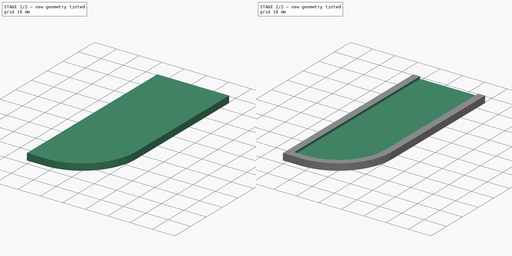
[diagram: build sequence overview — one tinted view per stage of 2, left to right]
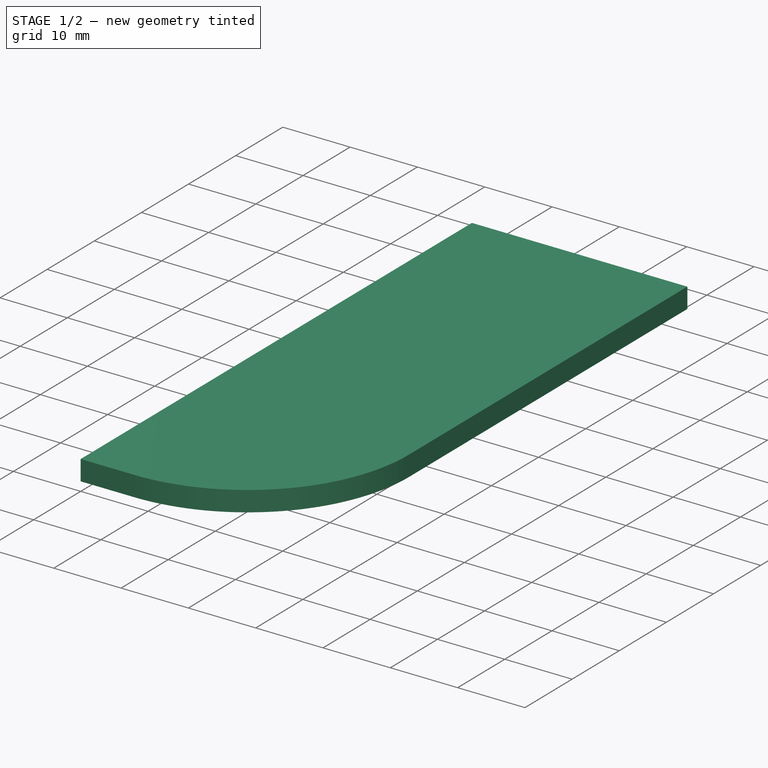
[diagram: stage 1 of 2 — iso view after this stage's code; geometry added in this stage tinted green]
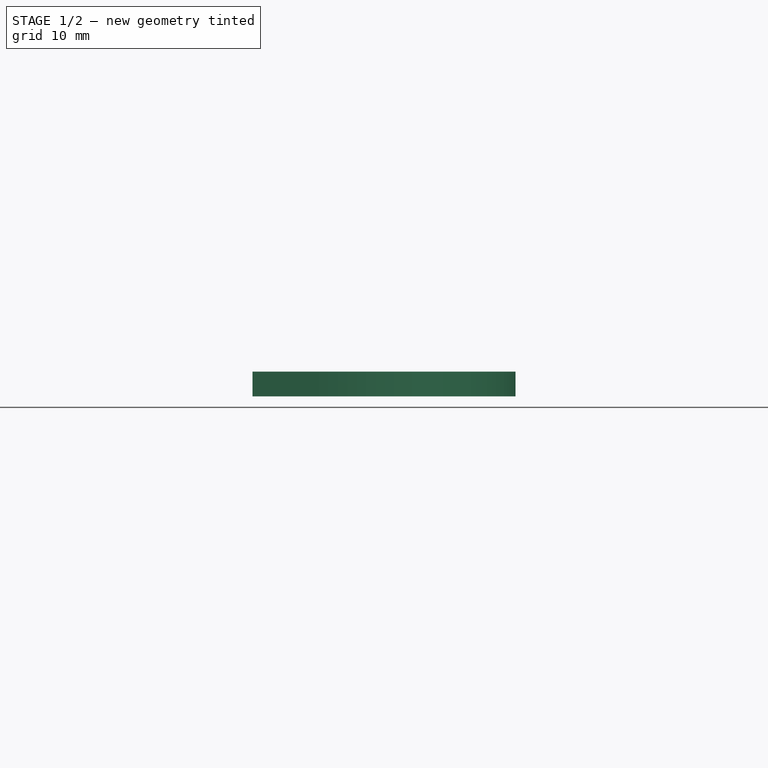
[diagram: stage 1 of 2 — front view after this stage's code; geometry added in this stage tinted green]
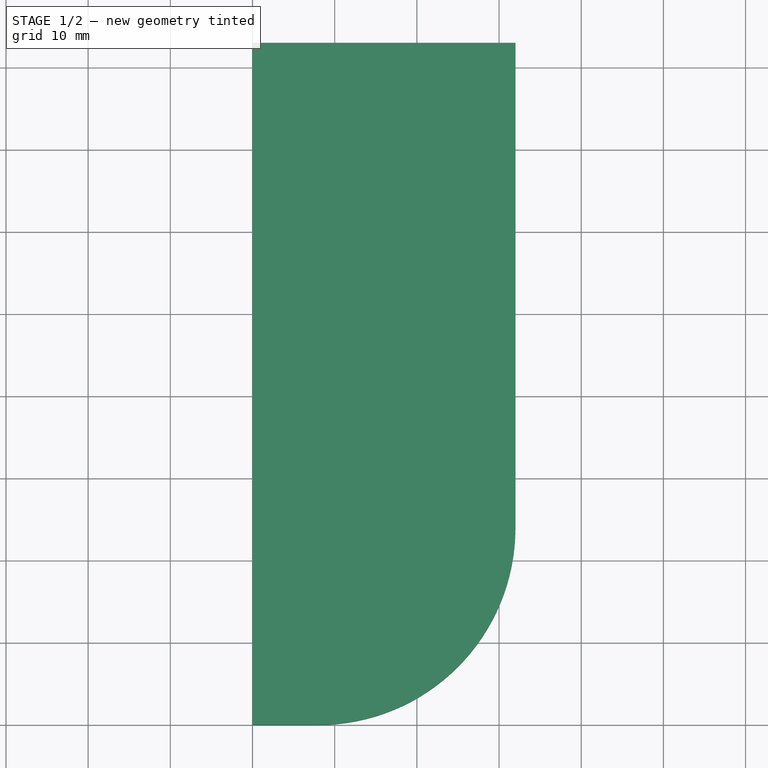
[diagram: stage 1 of 2 — top view after this stage's code; geometry added in this stage tinted green]
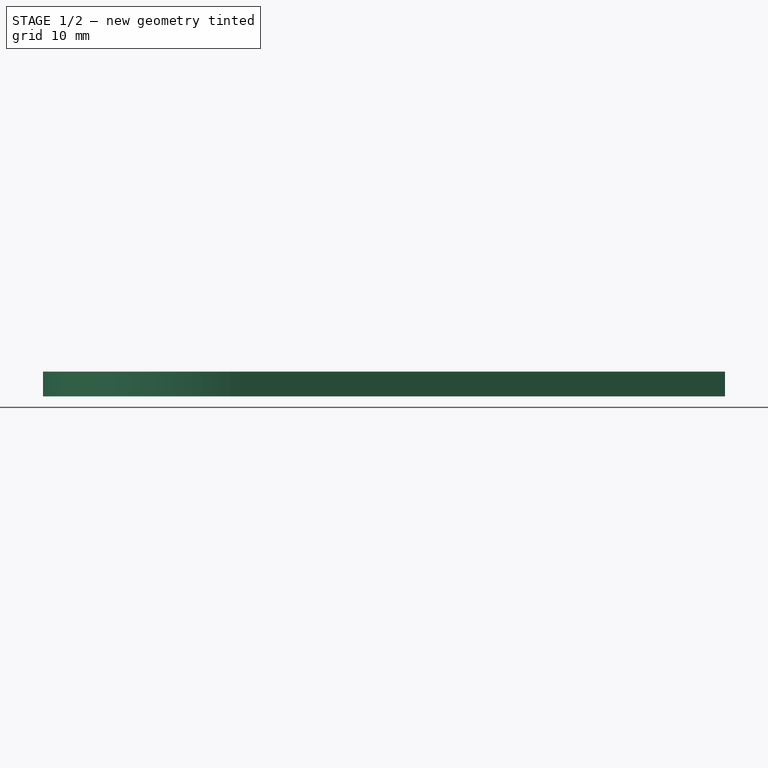
[diagram: stage 1 of 2 — right view after this stage's code; geometry added in this stage tinted green]
FCSTD DOCUMENT  (FreeCAD 0.20R29603 (Git))
Label: cale-avant-droite-stand-proto
License: Public Domain
LicenseURL: http://en.wikipedia.org/wiki/Public_domain
objects: Sketcher::SketchObject×2, PartDesign::Pad×1, PartDesign::Pocket×1, PartDesign::Body×1
note: 7 computed .brp shape members not serialized (recipe doc carries the construction recipe); baked Part::Feature solids carry a one-line shape summary decoded from their .brp

FEATURE [Sketcher::SketchObject] Sketch
  FullyConstrained = true
  MapMode = 5
  Support = -> [XY_Plane]
  sketch-geometry (5):
    g0: LineSegment StartX=0 StartY=0 StartZ=0 EndX=8 EndY=0 EndZ=0
    g1: ArcOfCircle CenterX=8 CenterY=24 CenterZ=0 NormalX=0 NormalY=0 NormalZ=1 AngleXU=0 Radius=24 StartAngle=4.71239 EndAngle=6.28319
    g2: LineSegment StartX=32 StartY=24 StartZ=0 EndX=32 EndY=83 EndZ=0
    g3: LineSegment StartX=32 StartY=83 StartZ=0 EndX=0 EndY=83 EndZ=0
    g4: LineSegment StartX=0 StartY=83 StartZ=0 EndX=0 EndY=0 EndZ=0
  constraints (14):
    c: Coincident(g0,g-1)
    c: PointOnObject(g0,g-1)
    c: Coincident(g1,g0)
    c: Vertical(g0,g1)
    c: DistanceX(g1) = 32
    c: DistanceX(g0) = 8
    c: Vertical(g2)
    c: DistanceY(g2) = 83
    c: Coincident(g3,g2)
    c: PointOnObject(g3,g-2)
    c: Horizontal(g3)
    c: Coincident(g4,g3)
    c: Coincident(g4,g0)
    c: Tangent(g2,g1) = -1.5708
FEATURE [PartDesign::Pad] Pad
  Direction = (0,0,1)
  Length = 3
  Length2 = 10
  Profile = -> Sketch
  ReferenceAxis = -> Sketch [N_Axis]
  Type = 0
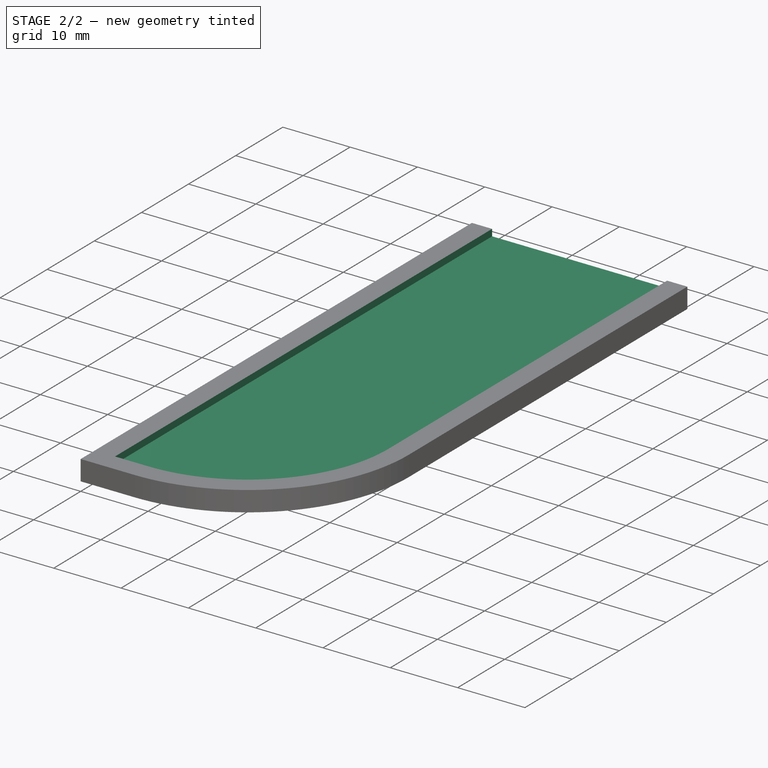
[diagram: stage 2 of 2 — iso view after this stage's code; geometry added in this stage tinted green]
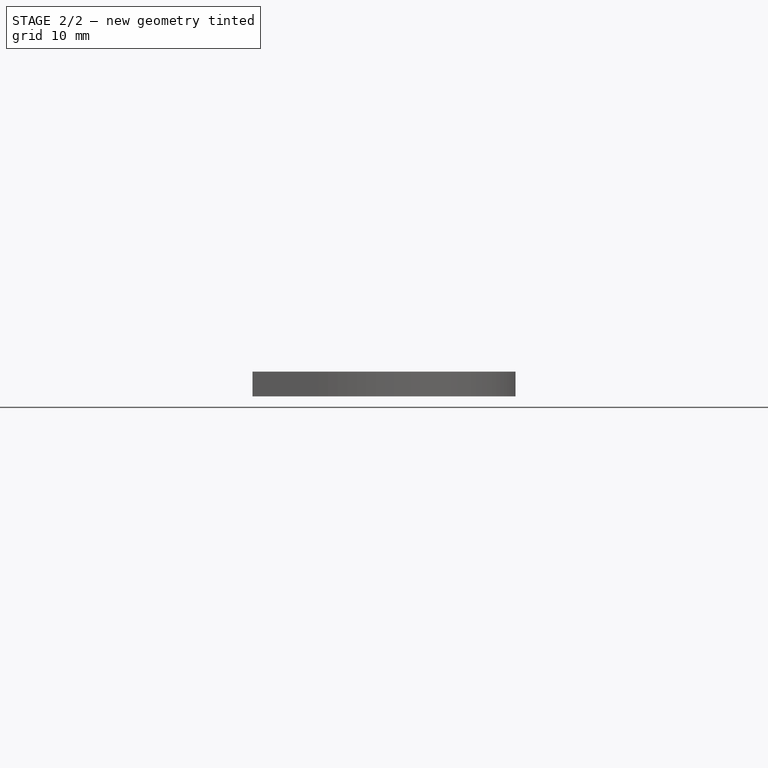
[diagram: stage 2 of 2 — front view after this stage's code; geometry added in this stage tinted green]
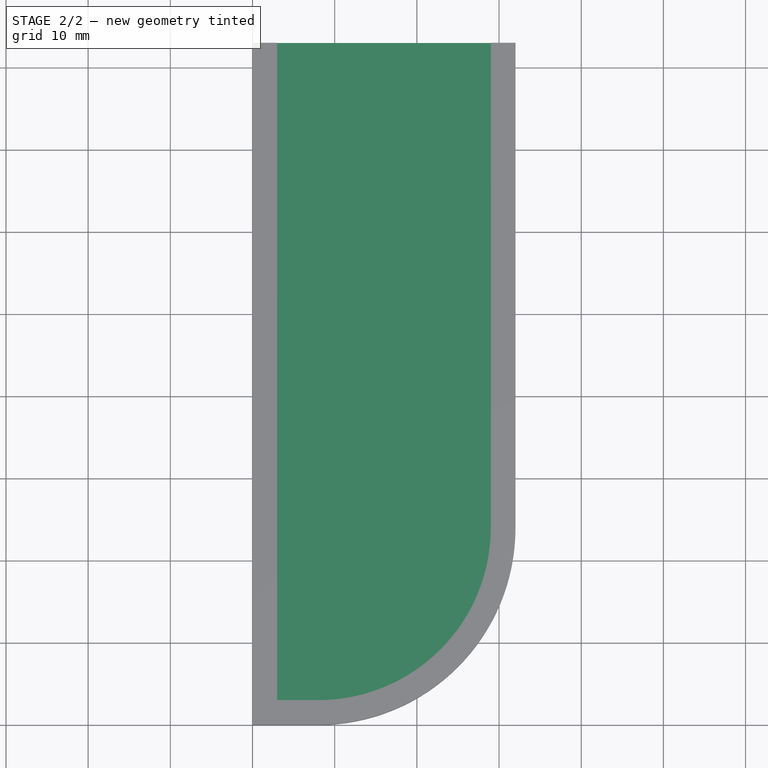
[diagram: stage 2 of 2 — top view after this stage's code; geometry added in this stage tinted green]
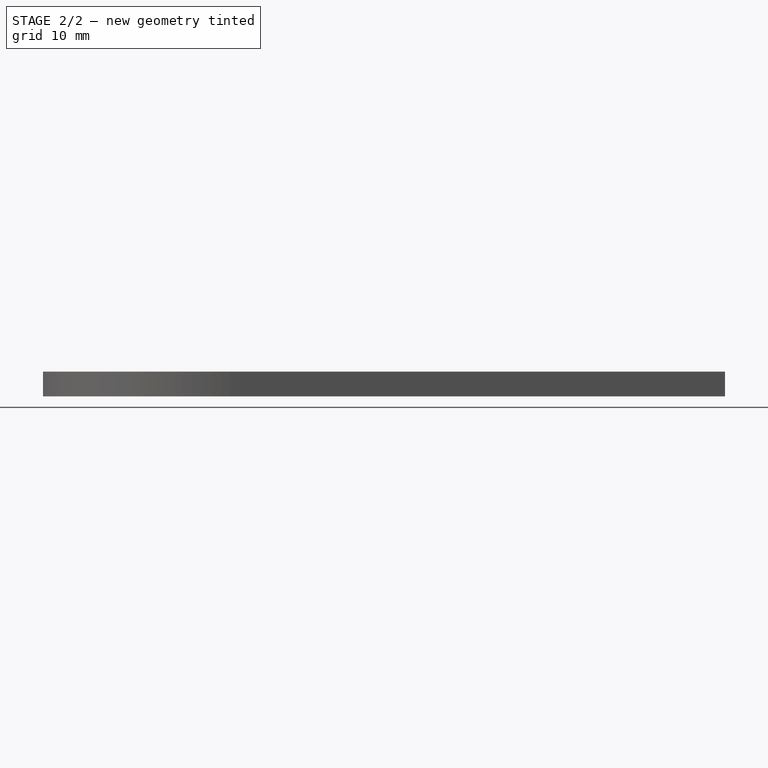
[diagram: stage 2 of 2 — right view after this stage's code; geometry added in this stage tinted green]
FEATURE [Sketcher::SketchObject] Sketch001
  FullyConstrained = true
  MapMode = 5
  Placement = pos=(0,0,3) rot=(0,0,1;0rad)
  Support = -> [Pad]
  sketch-geometry (5):
    g0: LineSegment StartX=3 StartY=84 StartZ=0 EndX=3 EndY=3 EndZ=0
    g1: LineSegment StartX=3 StartY=3 StartZ=0 EndX=8 EndY=3 EndZ=0
    g2: ArcOfCircle CenterX=8 CenterY=24 CenterZ=0 NormalX=0 NormalY=0 NormalZ=1 AngleXU=0 Radius=21 StartAngle=4.71239 EndAngle=6.28319
    g3: LineSegment StartX=29 StartY=24 StartZ=0 EndX=29 EndY=84 EndZ=0
    g4: LineSegment StartX=29 StartY=84 StartZ=0 EndX=3 EndY=84 EndZ=0
  constraints (15):
    c: Vertical(g0)
    c: Coincident(g1,g0)
    c: Horizontal(g1)
    c: Coincident(g2,g1)
    c: DistanceX(g1,g1) = 5
    c: DistanceY(g0,g0) = 81
    c: Vertical(g3)
    c: Tangent(g3,g2) = -1.5708
    c: DistanceX(g0,g2) = 26
    c: Coincident(g4,g3)
    c: Coincident(g4,g0)
    c: Horizontal(g4)
    c: DistanceY(g0) = 3
    c: Vertical(g2,g1)
    c: DistanceX(g0) = 3
FEATURE [PartDesign::Pocket] Pocket
  BaseFeature = -> Pad
  Direction = (0,0,-1)
  Length = 1
  Length2 = 5
  Profile = -> Sketch001
  ReferenceAxis = -> Sketch001 [N_Axis]
  Type = 0
FEATURE [PartDesign::Body] Body
  Group = -> [Sketch,Pad,Sketch001,Pocket]
  Origin = -> Origin
  Tip = -> Pocket
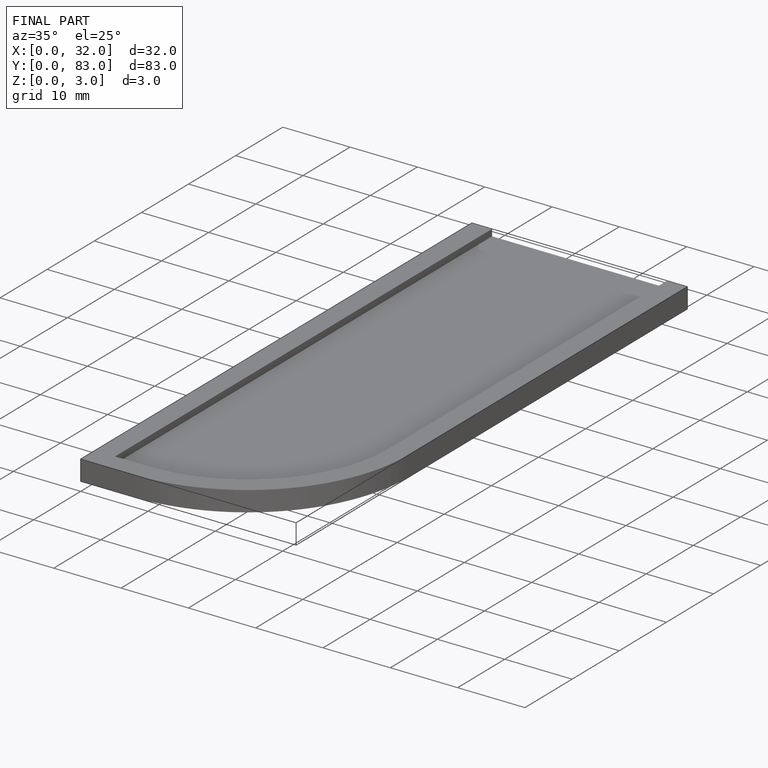
[diagram: finished part — iso view with bounding-box wireframe]
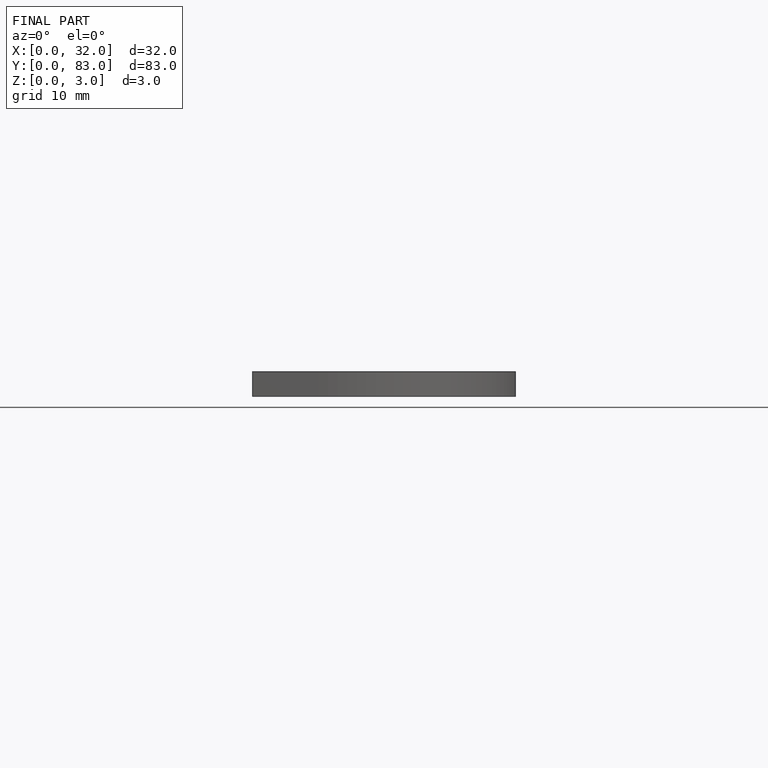
[diagram: finished part — front view with bounding-box wireframe]
